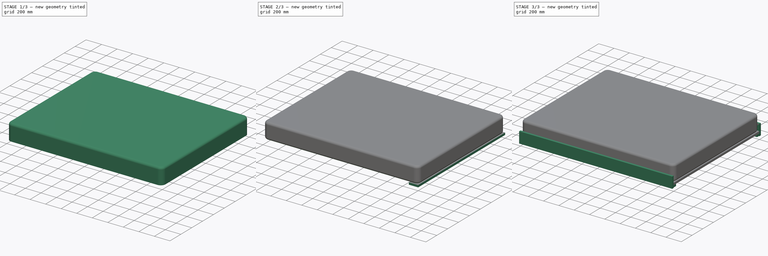
[diagram: build sequence overview — one tinted view per stage of 3, left to right]
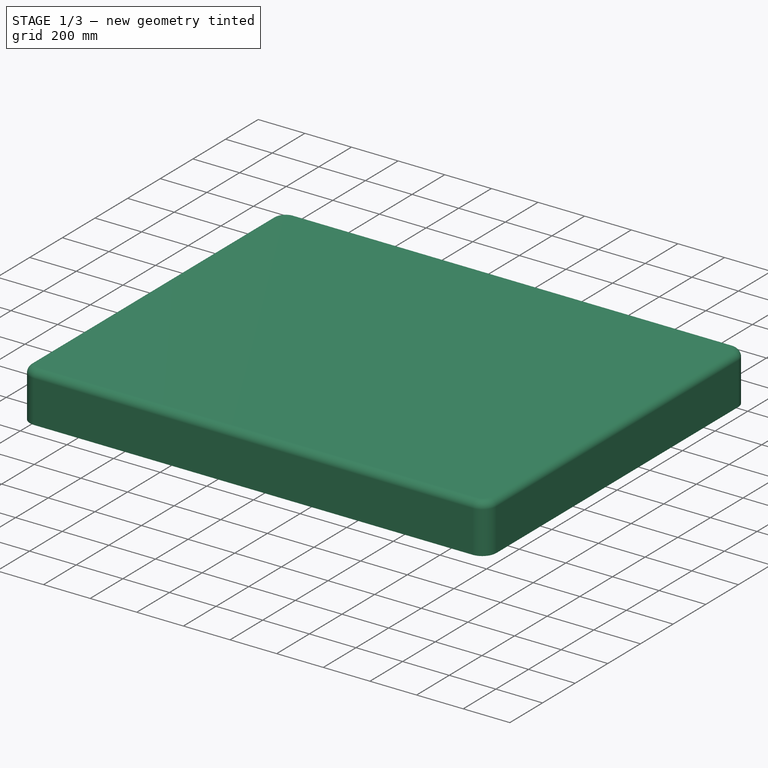
[diagram: stage 1 of 3 — iso view after this stage's code; geometry added in this stage tinted green]
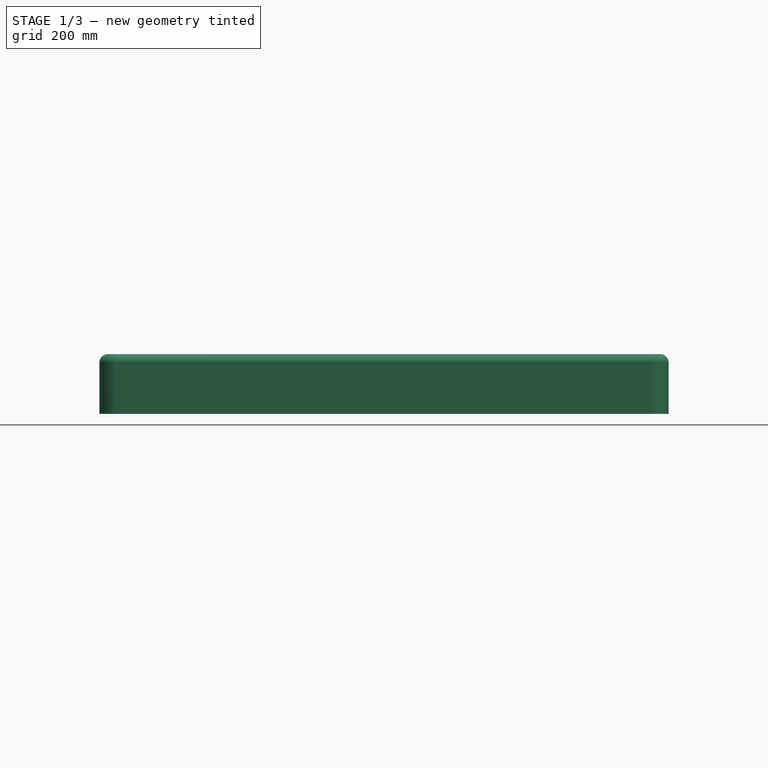
[diagram: stage 1 of 3 — front view after this stage's code; geometry added in this stage tinted green]
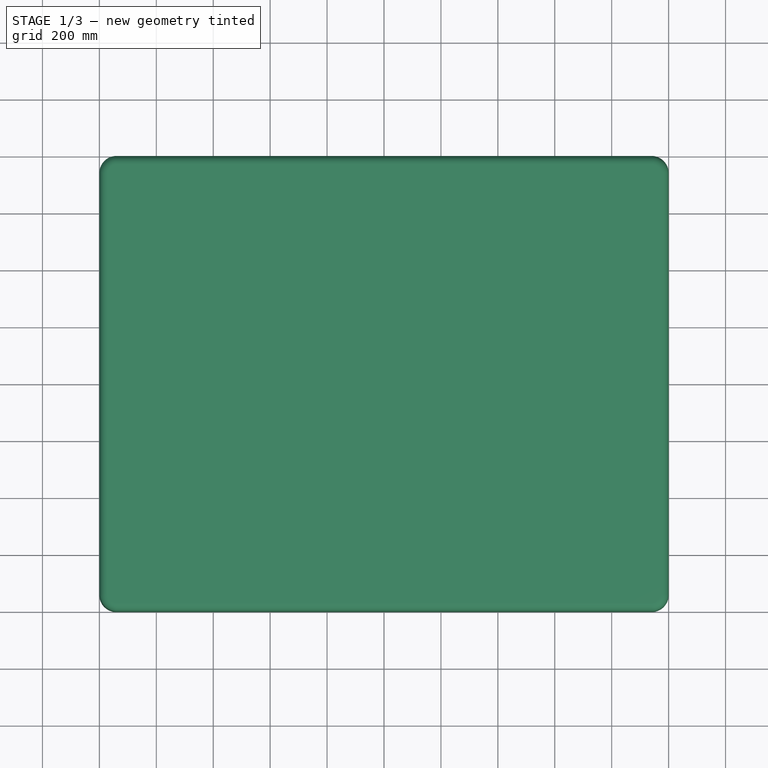
[diagram: stage 1 of 3 — top view after this stage's code; geometry added in this stage tinted green]
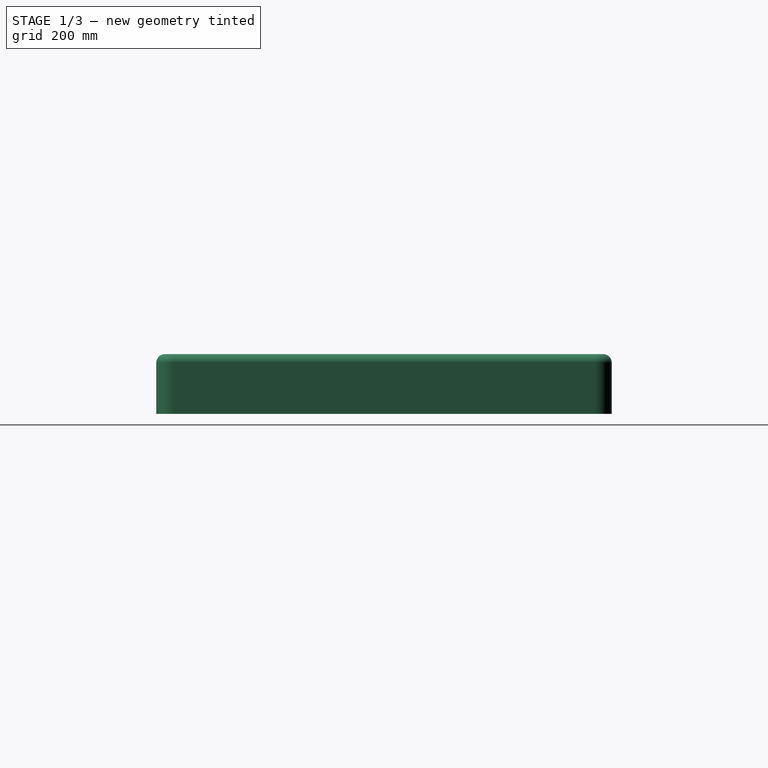
[diagram: stage 1 of 3 — right view after this stage's code; geometry added in this stage tinted green]
FCSTD DOCUMENT  (FreeCAD 0.17R13509 (Git))
Label: 190308 Bett_rev01
License: All rights reserved
LicenseURL: http://en.wikipedia.org/wiki/All_rights_reserved
objects: Sketcher::SketchObject×4, PartDesign::Pad×3, PartDesign::Fillet×3, PartDesign::LinearPattern×1, PartDesign::Mirrored×1, PartDesign::Body×1
note: 16 computed .brp shape members not serialized (recipe doc carries the construction recipe); baked Part::Feature solids carry a one-line shape summary decoded from their .brp

FEATURE [Sketcher::SketchObject] Sketch
  MapMode = 5
  Support = -> [XY_Plane]
  sketch-geometry (4):
    g0: LineSegment StartX=-1000 StartY=800 StartZ=0 EndX=1000 EndY=800 EndZ=0
    g1: LineSegment StartX=1000 StartY=800 StartZ=0 EndX=1000 EndY=-800 EndZ=0
    g2: LineSegment StartX=1000 StartY=-800 StartZ=0 EndX=-1000 EndY=-800 EndZ=0
    g3: LineSegment StartX=-1000 StartY=-800 StartZ=0 EndX=-1000 EndY=800 EndZ=0
  constraints (12):
    c: Coincident(g0,g1)
    c: Horizontal(g0)
    c: Horizontal(g2)
    c: Vertical(g1)
    c: Vertical(g3)
    c: Symmetric(g2,g0,g-1)
    c: Symmetric(g0,g0,g-2)
    c: DistanceY(g3,g3) = 1600
    c: DistanceX(g0,g0) = 2000
    c: Coincident(g0,g3)
    c: Coincident(g3,g2)
    c: Coincident(g2,g1)
FEATURE [PartDesign::Pad] Pad
  Length = 210
  Length2 = 100
  Profile = -> Sketch
  Type = 0
FEATURE [PartDesign::Fillet] Fillet
  Base = -> Pad [Edge2,Edge5,Edge8,Edge1]
  BaseFeature = -> Pad
  Radius = 60
FEATURE [PartDesign::Fillet] Fillet001
  Base = -> Fillet [Edge4]
  BaseFeature = -> Fillet
  Radius = 30
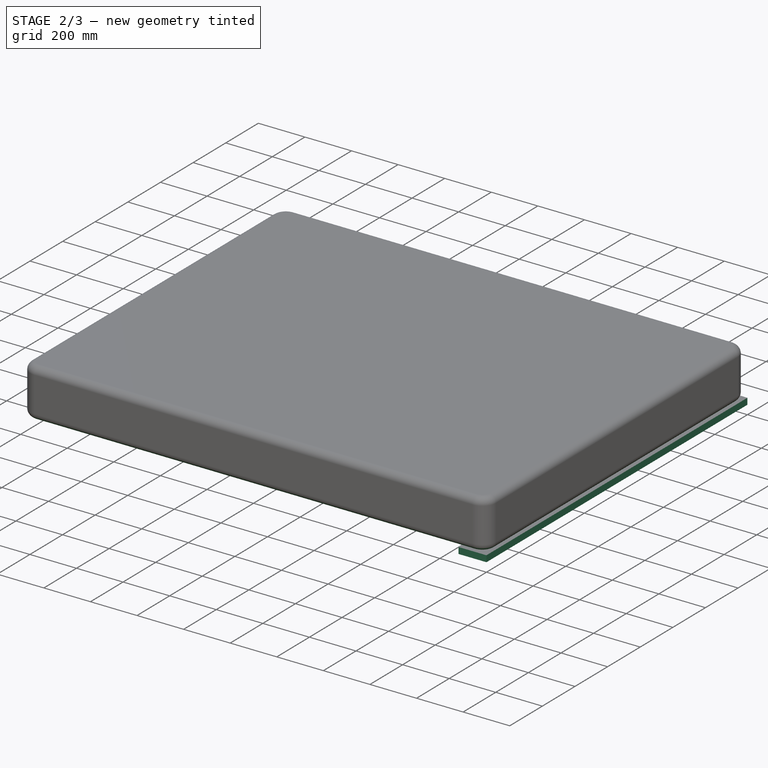
[diagram: stage 2 of 3 — iso view after this stage's code; geometry added in this stage tinted green]
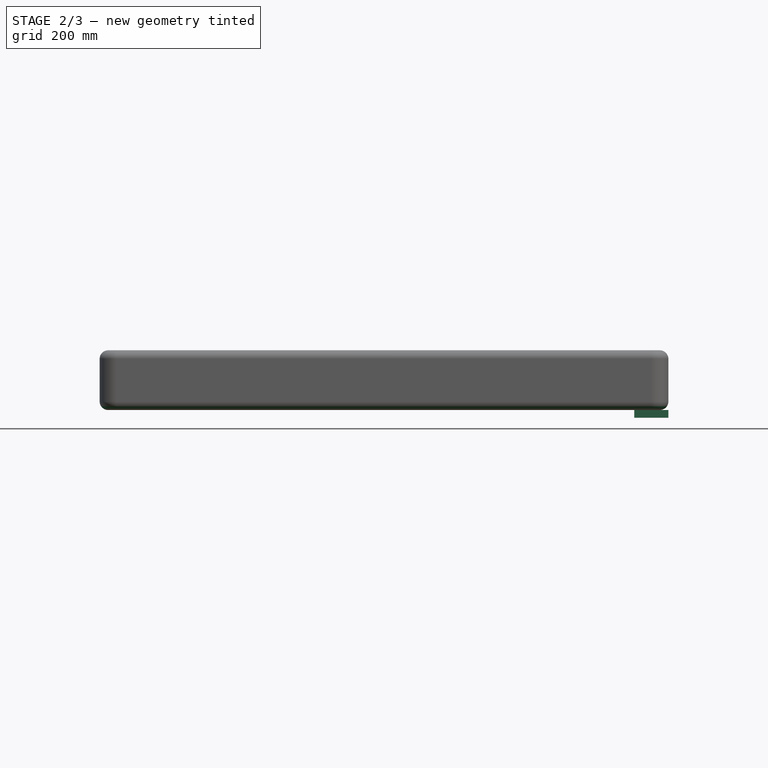
[diagram: stage 2 of 3 — front view after this stage's code; geometry added in this stage tinted green]
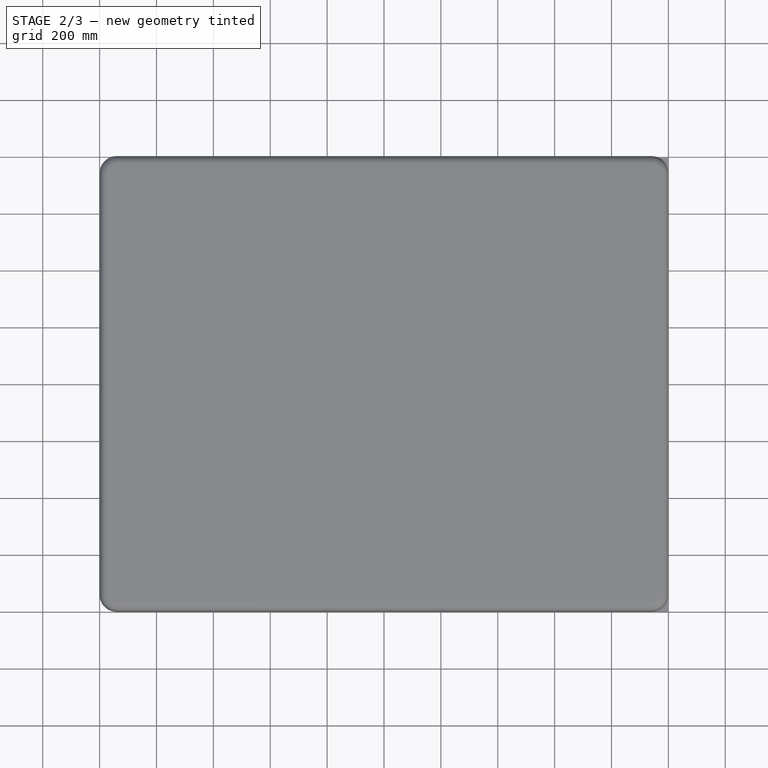
[diagram: stage 2 of 3 — top view after this stage's code; geometry added in this stage tinted green]
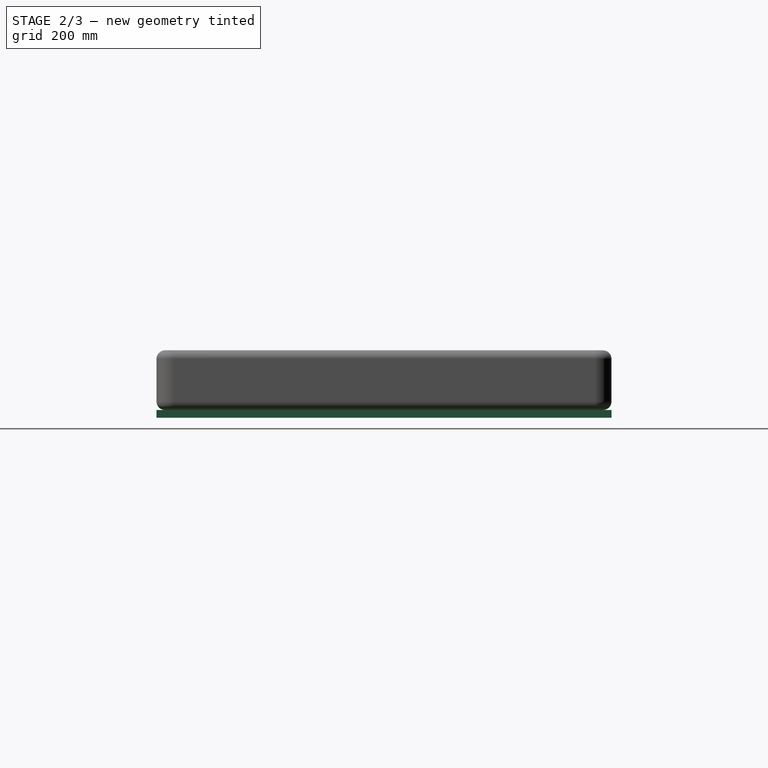
[diagram: stage 2 of 3 — right view after this stage's code; geometry added in this stage tinted green]
FEATURE [PartDesign::Fillet] Fillet002
  Base = -> Fillet001 [Edge3]
  BaseFeature = -> Fillet001
  Radius = 30
FEATURE [Sketcher::SketchObject] Sketch001
  ExternalGeometry = -> [Fillet002]
  MapMode = 5
  Placement = pos=(0,800,0) rot=(0,0.707107,0.707107;3.14159rad)
  Support = -> [Fillet002]
  sketch-geometry (4):
    g0: LineSegment StartX=-880 StartY=-27 StartZ=0 EndX=-1000 EndY=-27 EndZ=0
    g1: LineSegment StartX=-1000 StartY=-27 StartZ=0 EndX=-1000 EndY=0 EndZ=0
    g2: LineSegment StartX=-1000 StartY=0 StartZ=0 EndX=-880 EndY=0 EndZ=0
    g3: LineSegment StartX=-880 StartY=0 StartZ=0 EndX=-880 EndY=-27 EndZ=0
  constraints (12):
    c: Coincident(g0,g1)
    c: Coincident(g1,g2)
    c: Coincident(g2,g3)
    c: Coincident(g3,g0)
    c: Horizontal(g0)
    c: Horizontal(g2)
    c: Vertical(g1)
    c: Vertical(g3)
    c: PointOnObject(g1,g-3)
    c: PointOnObject(g1,g-4)
    c: Distance(g1) = 27
    c: Distance(g0) = 120
FEATURE [PartDesign::Pad] Pad001
  BaseFeature = -> Fillet002
  Length = 10
  Length2 = 100
  Profile = -> Sketch001
  Type = 3
  UpToFace = -> Fillet002 [Face26]
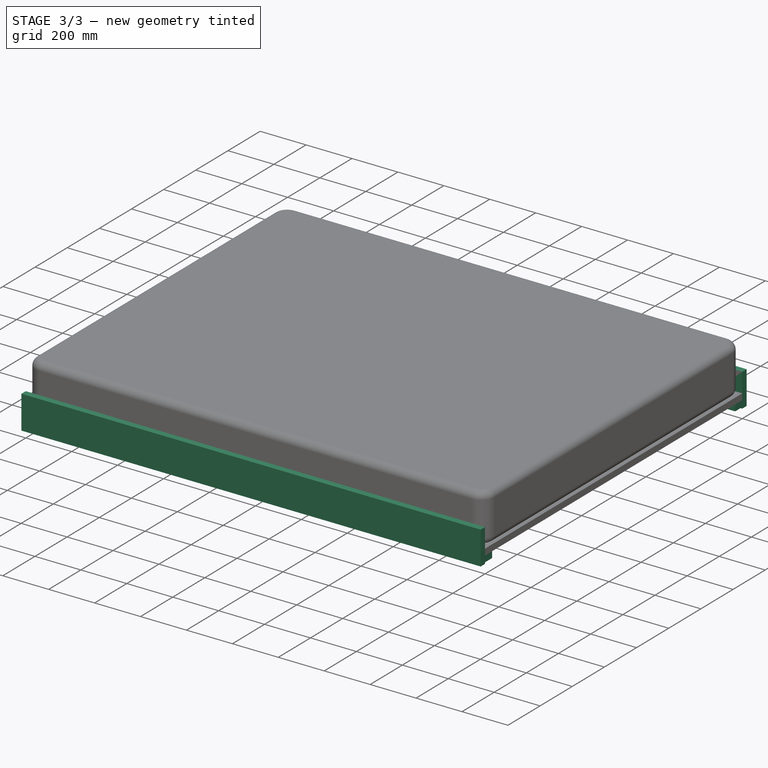
[diagram: stage 3 of 3 — iso view after this stage's code; geometry added in this stage tinted green]
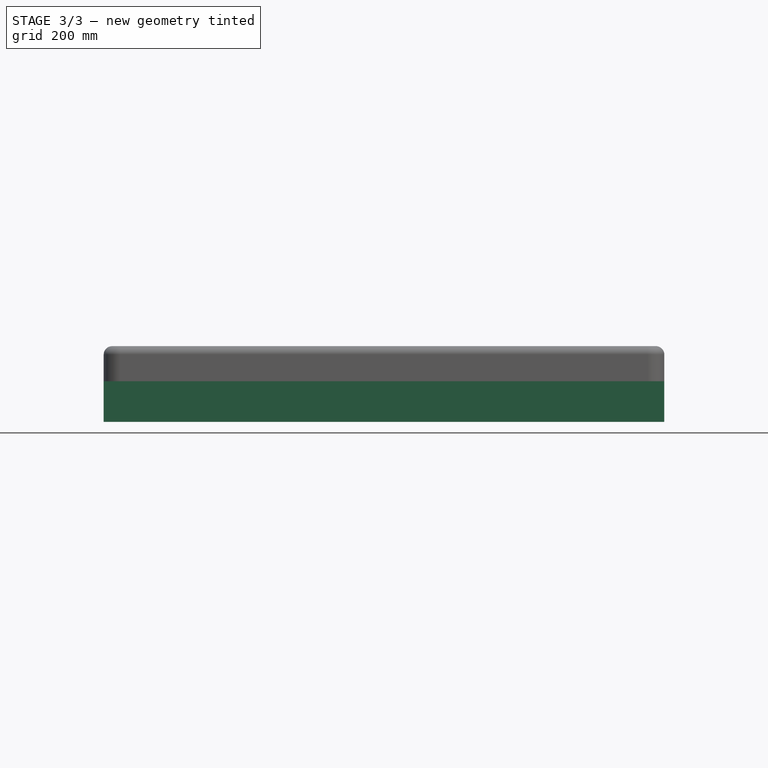
[diagram: stage 3 of 3 — front view after this stage's code; geometry added in this stage tinted green]
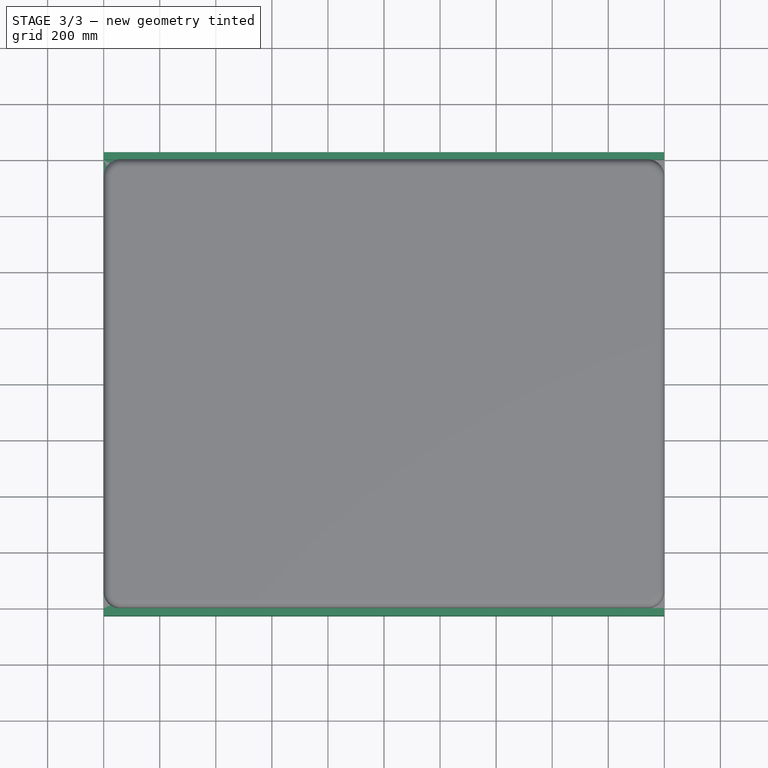
[diagram: stage 3 of 3 — top view after this stage's code; geometry added in this stage tinted green]
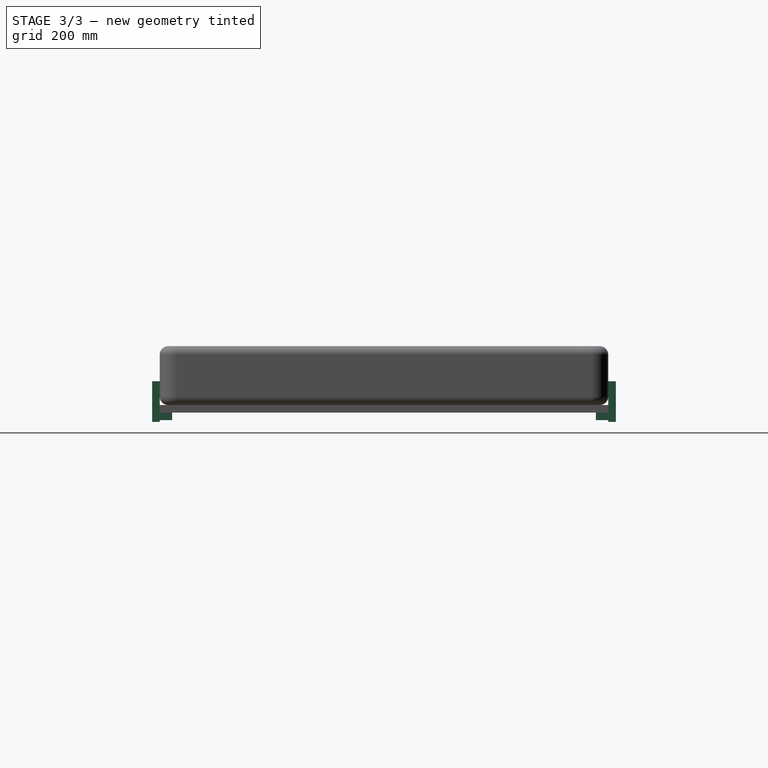
[diagram: stage 3 of 3 — right view after this stage's code; geometry added in this stage tinted green]
FEATURE [PartDesign::LinearPattern] LinearPattern
  BaseFeature = -> Pad001
  Direction = -> Sketch001 [H_Axis]
  Length = 1880
  Occurrences = 14
  Originals = -> [Pad001]
FEATURE [Sketcher::SketchObject] Sketch002
  ExternalGeometry = -> [LinearPattern]
  MapMode = 5
  Placement = pos=(-1000,0,0) rot=(0.57735,-0.57735,-0.57735;2.0944rad)
  Support = -> [LinearPattern]
  sketch-geometry (8):
    g0: LineSegment StartX=-827 StartY=85 StartZ=0 EndX=-800 EndY=85 EndZ=0
    g1: LineSegment StartX=-800 StartY=85 StartZ=0 EndX=-800 EndY=-27 EndZ=0
    g2: LineSegment StartX=-800 StartY=-60 StartZ=0 EndX=-827 EndY=-60 EndZ=0
    g3: LineSegment StartX=-827 StartY=-60 StartZ=0 EndX=-827 EndY=85 EndZ=0
    g4: LineSegment StartX=-800 StartY=-27 StartZ=0 EndX=-756 EndY=-27 EndZ=0
    g5: LineSegment StartX=-756 StartY=-27 StartZ=0 EndX=-756 EndY=-54 EndZ=0
    g6: LineSegment StartX=-756 StartY=-54 StartZ=0 EndX=-800 EndY=-54 EndZ=0
    g7: LineSegment StartX=-800 StartY=-60 StartZ=0 EndX=-800 EndY=-54 EndZ=0
  constraints (25):
    c: Coincident(g0,g1)
    c: Coincident(g2,g3)
    c: Coincident(g3,g0)
    c: Horizontal(g0)
    c: Horizontal(g2)
    c: Vertical(g1)
    c: Vertical(g3)
    c: Distance(g0) = 27
    c: Distance(g3) = 145
    c: PointOnObject(g1,g-3)
    c: DistanceY(g2,g-1) = 60
    c: Horizontal(g4)
    c: Coincident(g4,g5)
    c: Vertical(g5)
    c: Coincident(g5,g6)
    c: Horizontal(g6)
    c: PointOnObject(g4,g1)
    c: PointOnObject(g6,g1)
    c: Coincident(g1,g4)
    c: Coincident(g7,g2)
    c: Coincident(g7,g6)
    c: Vertical(g7)
    c: PointOnObject(g4,g-4)
    c: Equal(g2,g5)
    c: DistanceX(g6,g6) = 44
FEATURE [PartDesign::Pad] Pad002
  BaseFeature = -> LinearPattern
  Length = 10
  Length2 = 100
  Profile = -> Sketch002
  Type = 3
  UpToFace = -> LinearPattern [Face39]
FEATURE [PartDesign::Mirrored] Mirrored
  BaseFeature = -> Pad002
  MirrorPlane = -> Sketch002 [V_Axis]
  Originals = -> [Pad002]
FEATURE [Sketcher::SketchObject] Sketch003
  ExternalGeometry = -> [Mirrored]
  MapMode = 5
  Placement = pos=(0,0,-60) rot=(1,0,0;3.14159rad)
  Support = -> [Mirrored]
  sketch-geometry (16):
    g0: LineSegment StartX=-1000 StartY=850 StartZ=0 EndX=-1100 EndY=850 EndZ=0
    g1: LineSegment StartX=-1100 StartY=850 StartZ=0 EndX=-1100 EndY=700 EndZ=0
    g2: LineSegment StartX=-1100 StartY=700 StartZ=0 EndX=-1000 EndY=700 EndZ=0
    g3: LineSegment StartX=-1000 StartY=700 StartZ=0 EndX=-1000 EndY=850 EndZ=0
    g4: LineSegment StartX=1000 StartY=700 StartZ=0 EndX=1100 EndY=700 EndZ=0
    g5: LineSegment StartX=1100 StartY=700 StartZ=0 EndX=1100 EndY=850 EndZ=0
    g6: LineSegment StartX=1100 StartY=850 StartZ=0 EndX=1000 EndY=850 EndZ=0
    g7: LineSegment StartX=1000 StartY=850 StartZ=0 EndX=1000 EndY=700 EndZ=0
    g8: LineSegment StartX=1000 StartY=-700 StartZ=0 EndX=1100 EndY=-700 EndZ=0
    g9: LineSegment StartX=1100 StartY=-700 StartZ=0 EndX=1100 EndY=-850 EndZ=0
    g10: LineSegment StartX=1100 StartY=-850 StartZ=0 EndX=1000 EndY=-850 EndZ=0
    g11: LineSegment StartX=1000 StartY=-850 StartZ=0 EndX=1000 EndY=-700 EndZ=0
    g12: LineSegment StartX=-1000 StartY=-700 StartZ=0 EndX=-1100 EndY=-700 EndZ=0
    g13: LineSegment StartX=-1100 StartY=-700 StartZ=0 EndX=-1100 EndY=-850 EndZ=0
    g14: LineSegment StartX=-1100 StartY=-850 StartZ=0 EndX=-1000 EndY=-850 EndZ=0
    g15: LineSegment StartX=-1000 StartY=-850 StartZ=0 EndX=-1000 EndY=-700 EndZ=0
  constraints (47):
    c: Coincident(g0,g1)
    c: Coincident(g1,g2)
    c: Coincident(g2,g3)
    c: Coincident(g3,g0)
    c: Horizontal(g0)
    c: Horizontal(g2)
    c: Vertical(g1)
    c: Vertical(g3)
    c: PointOnObject(g0,g-4)
    c: Coincident(g4,g5)
    c: Coincident(g5,g6)
    c: Coincident(g6,g7)
    c: Coincident(g7,g4)
    c: Horizontal(g4)
    c: Horizontal(g6)
    c: Vertical(g5)
    c: Vertical(g7)
    c: PointOnObject(g4,g-3)
    c: Coincident(g8,g9)
    c: Coincident(g9,g10)
    c: Coincident(g10,g11)
    c: Coincident(g11,g8)
    c: Horizontal(g8)
    c: Horizontal(g10)
    c: Vertical(g9)
    c: Vertical(g11)
    c: PointOnObject(g8,g-3)
    c: Coincident(g12,g13)
    c: Coincident(g13,g14)
    c: Coincident(g14,g15)
    c: Coincident(g15,g12)
    c: Horizontal(g12)
    c: Horizontal(g14)
    c: Vertical(g13)
    c: Vertical(g15)
    c: PointOnObject(g12,g-4)
    c: Distance(g0) = 100
    c: Distance(g1) = 150
    c: DistanceY(g-5,g-5) = 0
    c: Distance(g0,g-5) = 50
    c: Symmetric(g5,g0,g-2)
    c: Symmetric(g13,g0,g-1)
    c: Symmetric(g12,g2,g-1)
    c: Horizontal(g12,g8)
    c: Horizontal(g14,g10)
    c: Vertical(g4,g8)
    c: Symmetric(g4,g2,g-2)
FEATURE [PartDesign::Body] Body
  Group = -> [Sketch,Pad,Fillet,Fillet001,Fillet002,Sketch001,Pad001,LinearPattern,Sketch002,Pad002,Mirrored,Sketch003]
  Origin = -> Origin
  Tip = -> Mirrored
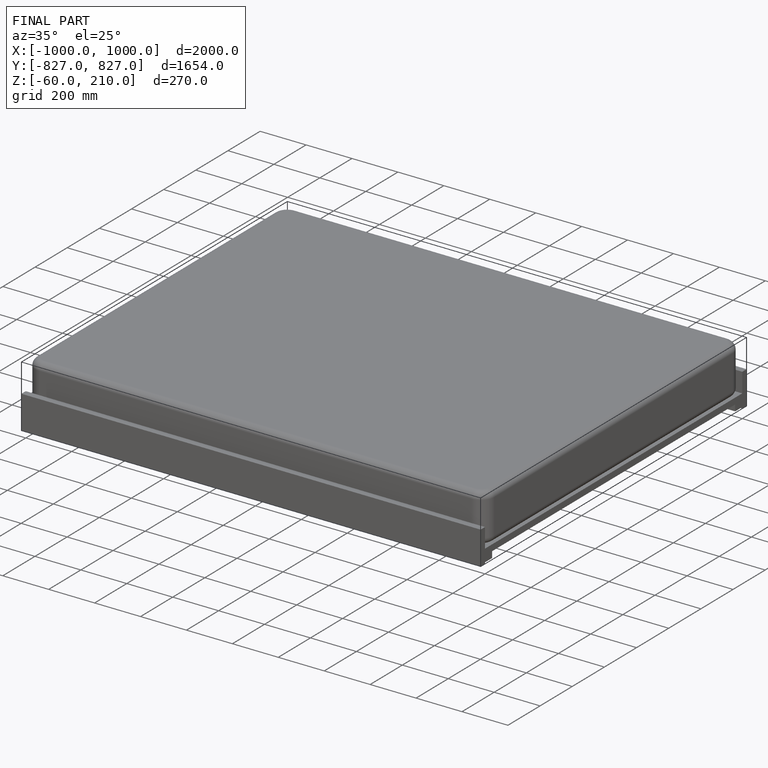
[diagram: finished part — iso view with bounding-box wireframe]
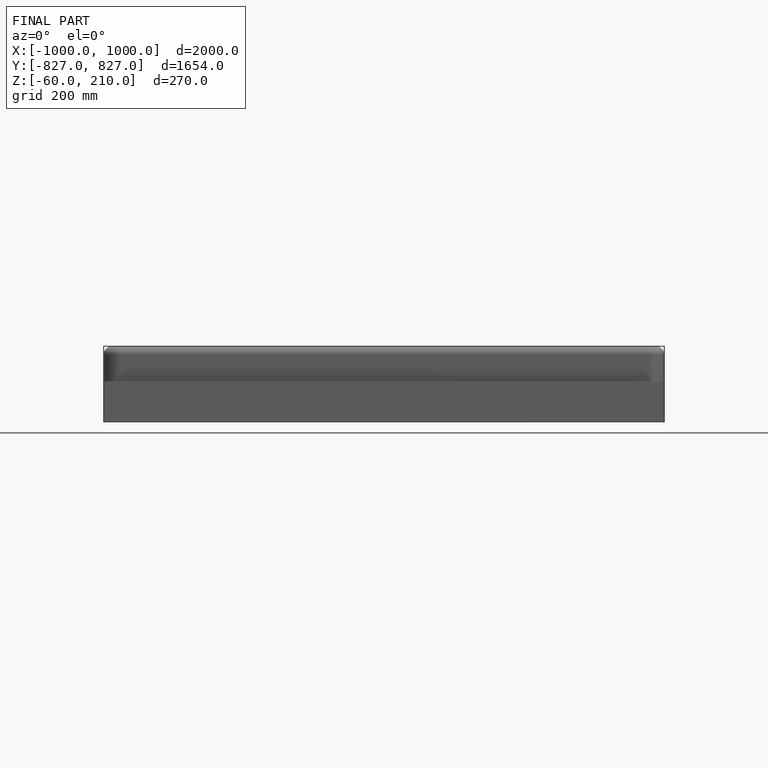
[diagram: finished part — front view with bounding-box wireframe]
